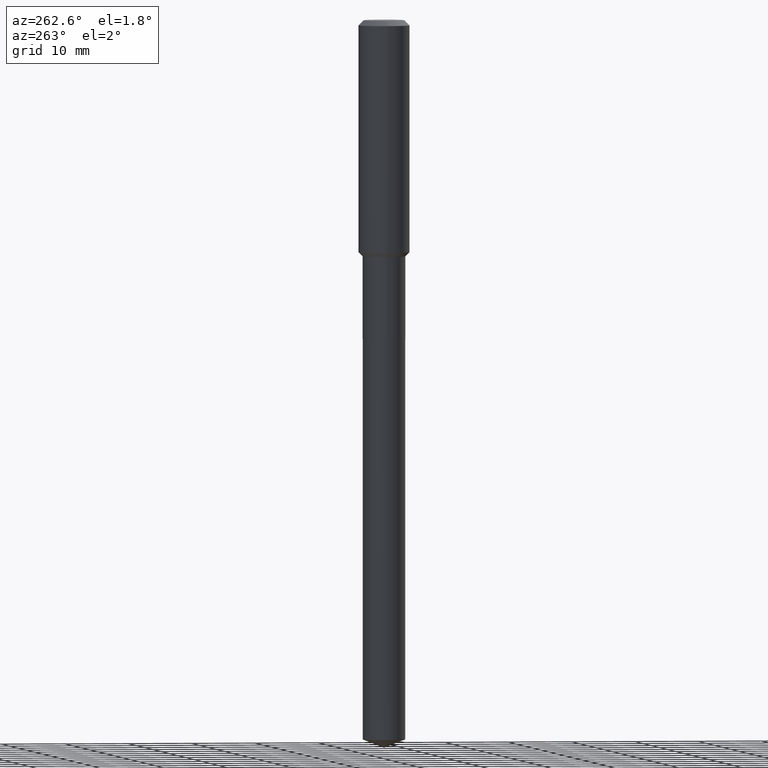
[diagram: clean part render]
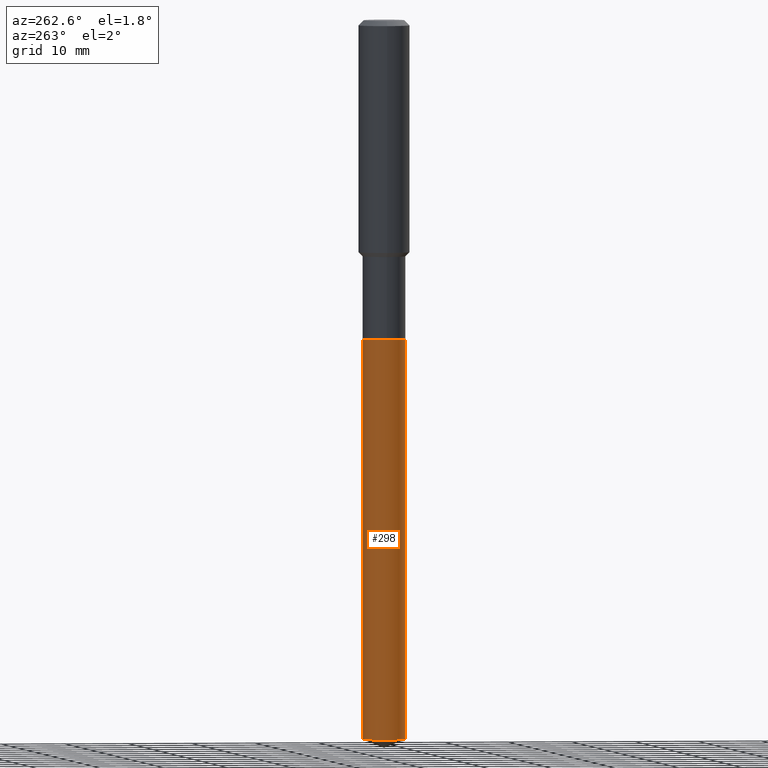
[diagram: same view with one face highlighted and labeled with its STEP entity id]
A machine part, auxiliary view. The second image highlights one B-rep face of the part: STEP entity #298.
In plain terms, the highlighted cylindrical surface (edge-blend (fillet) strip) has radius 3.3503 mm, axis along (-0, 0, 1).
Its self-contained STEP definition (entity closure, byte-faithful):
#12 = AXIS2_PLACEMENT_3D ( 'NONE', #181, #176, #245 ) ;
#29 = LINE ( 'NONE', #41, #478 ) ;
#41 = CARTESIAN_POINT ( 'NONE',  ( 9.372058684676199937E-16, 0.1318999999999931061, -1.968500000000000361 ) ) ;
#70 = DIRECTION ( 'NONE',  ( -2.445397477310179380E-29, 3.491583485851871163E-15, 1.000000000000000000 ) ) ;
#75 = AXIS2_PLACEMENT_3D ( 'NONE', #442, #239, #294 ) ;
#89 = EDGE_CURVE ( 'NONE', #129, #297, #477, .T. ) ;
#91 = LINE ( 'NONE', #234, #462 ) ;
#129 = VERTEX_POINT ( 'NONE', #276 ) ;
#139 = CYLINDRICAL_SURFACE ( 'NONE', #12, 0.1318999999999999895 ) ;
#149 = VERTEX_POINT ( 'NONE', #199 ) ;
#175 = EDGE_CURVE ( 'NONE', #149, #257, #284, .T. ) ;
#176 = DIRECTION ( 'NONE',  ( -2.445397477310179660E-29, 3.491583485851871163E-15, 1.000000000000000000 ) ) ;
#181 = CARTESIAN_POINT ( 'NONE',  ( 4.813905344975440714E-29, -6.872981015512730918E-15, -1.968499999999999694 ) ) ;
#183 = ORIENTED_EDGE ( 'NONE', *, *, #353, .F. ) ;
#197 = DIRECTION ( 'NONE',  ( -2.445397477310179660E-29, 3.491583485851871163E-15, 1.000000000000000000 ) ) ;
#199 = CARTESIAN_POINT ( 'NONE',  ( 9.372058684676801443E-16, 0.1318999999999844741, -4.436243208266390070 ) ) ;
#234 = CARTESIAN_POINT ( 'NONE',  ( -9.210527771867702945E-16, -0.1319000000000068729, -1.968499999999999250 ) ) ;
#239 = DIRECTION ( 'NONE',  ( -2.445397477310179660E-29, 3.491583485851871163E-15, 1.000000000000000000 ) ) ;
#245 = DIRECTION ( 'NONE',  ( -6.982962677686265922E-15, -1.000000000000000000, 4.142301734138382417E-15 ) ) ;
#257 = VERTEX_POINT ( 'NONE', #273 ) ;
#269 = DIRECTION ( 'NONE',  ( -6.982962677686265922E-15, -1.000000000000000000, 4.142301734138382417E-15 ) ) ;
#273 = CARTESIAN_POINT ( 'NONE',  ( -9.210527771867097494E-16, -0.1319000000000154493, -4.436243208266389182 ) ) ;
#276 = CARTESIAN_POINT ( 'NONE',  ( 9.372058684676809332E-16, 0.1318999999999931061, -1.968500000000000583 ) ) ;
#284 = CIRCLE ( 'NONE', #75, 0.1318999999999999895 ) ;
#294 = DIRECTION ( 'NONE',  ( -6.982962677686265922E-15, -1.000000000000000000, 4.142301734138382417E-15 ) ) ;
#297 = VERTEX_POINT ( 'NONE', #364 ) ;
#298 = ADVANCED_FACE ( 'NONE', ( #321 ), #139, .T. ) ;
#301 = ORIENTED_EDGE ( 'NONE', *, *, #341, .T. ) ;
#321 = FACE_OUTER_BOUND ( 'NONE', #426, .T. ) ;
#341 = EDGE_CURVE ( 'NONE', #257, #297, #91, .T. ) ;
#353 = EDGE_CURVE ( 'NONE', #149, #129, #29, .T. ) ;
#364 = CARTESIAN_POINT ( 'NONE',  ( -9.210527771867702945E-16, -0.1319000000000068729, -1.968499999999999472 ) ) ;
#375 = ORIENTED_EDGE ( 'NONE', *, *, #89, .F. ) ;
#387 = AXIS2_PLACEMENT_3D ( 'NONE', #476, #197, #269 ) ;
#400 = DIRECTION ( 'NONE',  ( -2.445397477310179380E-29, 3.491583485851871163E-15, 1.000000000000000000 ) ) ;
#423 = ORIENTED_EDGE ( 'NONE', *, *, #175, .T. ) ;
#426 = EDGE_LOOP ( 'NONE', ( #183, #423, #301, #375 ) ) ;
#442 = CARTESIAN_POINT ( 'NONE',  ( 1.084851836111940160E-28, -1.548931244881877348E-14, -4.436243208266390070 ) ) ;
#462 = VECTOR ( 'NONE', #70, 39.37007874015748143 ) ;
#476 = CARTESIAN_POINT ( 'NONE',  ( 4.813905344975441835E-29, -6.872981015512731707E-15, -1.968500000000000139 ) ) ;
#477 = CIRCLE ( 'NONE', #387, 0.1318999999999999895 ) ;
#478 = VECTOR ( 'NONE', #400, 39.37007874015748143 ) ;